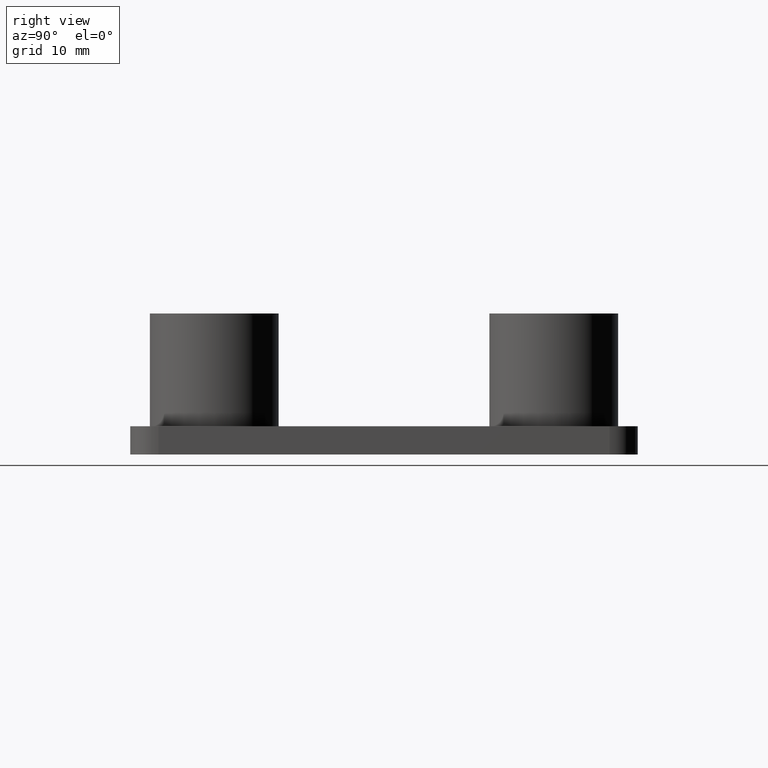
[diagram: clean part render]
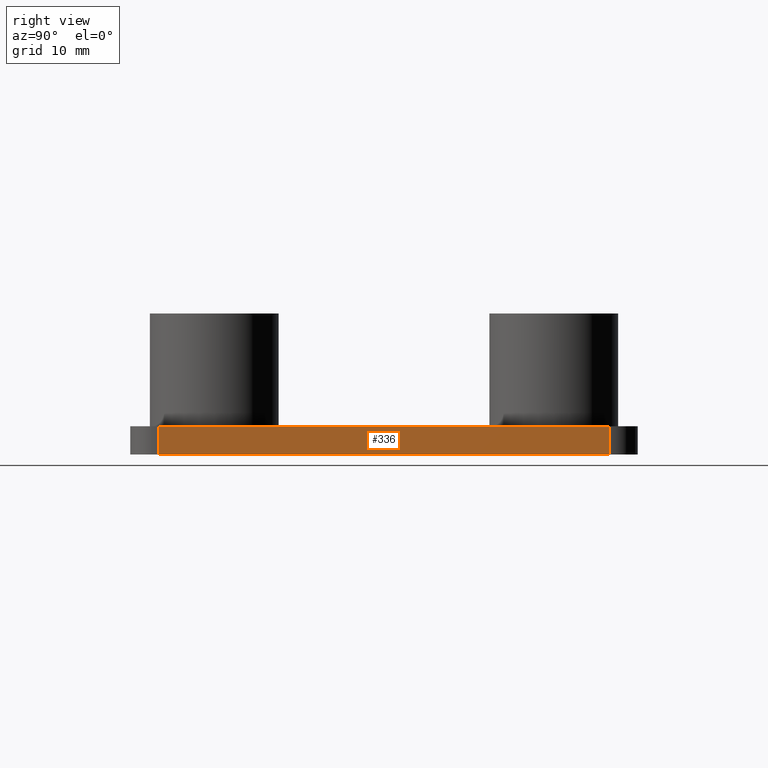
[diagram: same view with one face highlighted and labeled with its STEP entity id]
A machine part, right view. The second image highlights one B-rep face of the part: STEP entity #336.
In plain terms, the highlighted planar face has unit normal (-1, 0, 0).
Its self-contained STEP definition (entity closure, byte-faithful):
#32=PLANE('',#368);
#48=FACE_OUTER_BOUND('',#74,.T.);
#74=EDGE_LOOP('',(#253,#254,#255,#256));
#142=LINE('',#549,#158);
#143=LINE('',#553,#159);
#144=LINE('',#555,#160);
#145=LINE('',#556,#161);
#158=VECTOR('',#430,2.5);
#159=VECTOR('',#435,39.9999559998401);
#160=VECTOR('',#436,2.5);
#161=VECTOR('',#437,39.9999559998401);
#175=VERTEX_POINT('',#546);
#176=VERTEX_POINT('',#548);
#177=VERTEX_POINT('',#552);
#178=VERTEX_POINT('',#554);
#209=EDGE_CURVE('',#176,#175,#142,.T.);
#211=EDGE_CURVE('',#175,#177,#143,.T.);
#212=EDGE_CURVE('',#178,#177,#144,.T.);
#213=EDGE_CURVE('',#176,#178,#145,.T.);
#253=ORIENTED_EDGE('',*,*,#209,.T.);
#254=ORIENTED_EDGE('',*,*,#211,.T.);
#255=ORIENTED_EDGE('',*,*,#212,.F.);
#256=ORIENTED_EDGE('',*,*,#213,.F.);
#336=ADVANCED_FACE('',(#48),#32,.F.);
#368=AXIS2_PLACEMENT_3D('',#551,#433,#434);
#430=DIRECTION('',(0.,0.,-1.));
#433=DIRECTION('center_axis',(-1.,2.5000025E-8,0.));
#434=DIRECTION('ref_axis',(0.,0.,1.));
#435=DIRECTION('',(2.50000280143278E-8,1.,0.));
#436=DIRECTION('',(0.,0.,-1.));
#437=DIRECTION('',(2.50000280143278E-8,1.,0.));
#546=CARTESIAN_POINT('',(44.99995449982,-19.99997849992,-2.5));
#548=CARTESIAN_POINT('',(44.99995449982,-19.99997849992,0.));
#549=CARTESIAN_POINT('',(44.99995449982,-19.99997849992,0.));
#551=CARTESIAN_POINT('Origin',(44.99995449982,-19.99997849992,0.));
#552=CARTESIAN_POINT('',(44.9999554998198,19.9999774999201,-2.5));
#553=CARTESIAN_POINT('',(44.9999544998199,-19.99997849992,-2.5));
#554=CARTESIAN_POINT('',(44.9999554998198,19.9999774999201,0.));
#555=CARTESIAN_POINT('',(44.9999554998198,19.9999774999201,0.));
#556=CARTESIAN_POINT('',(44.9999544998199,-19.99997849992,0.));